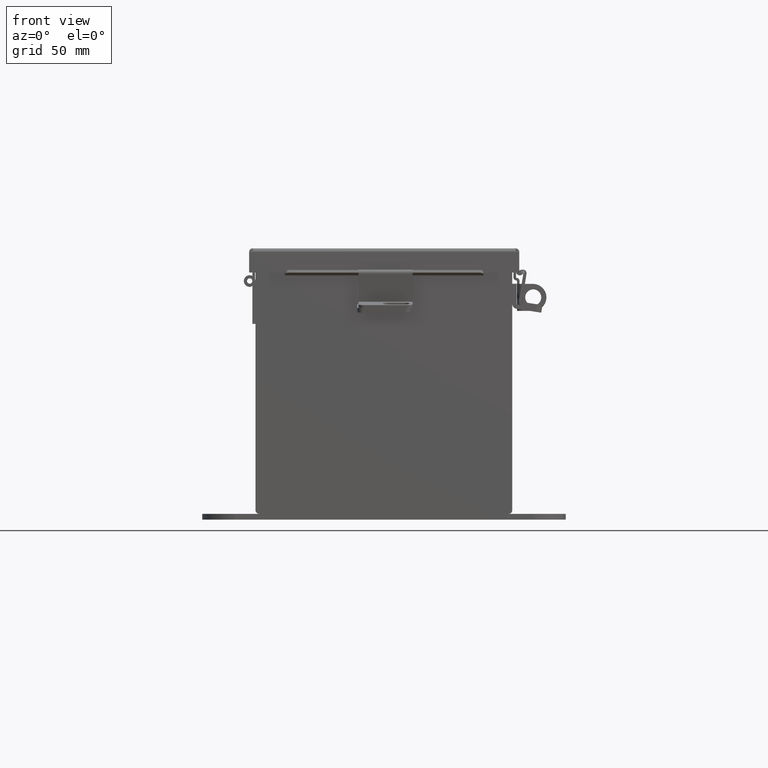
[diagram: clean part render]
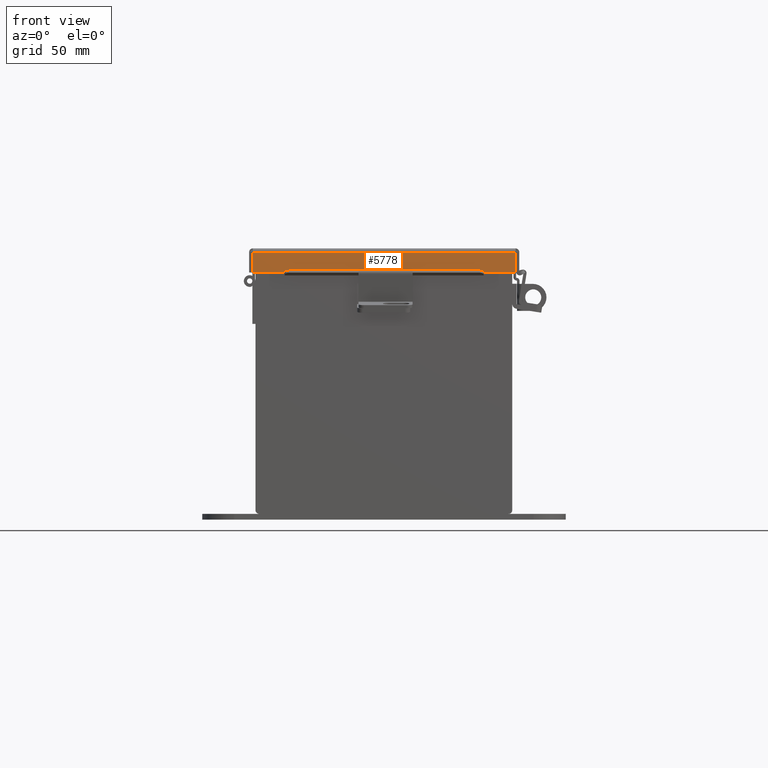
[diagram: same view with one face highlighted and labeled with its STEP entity id]
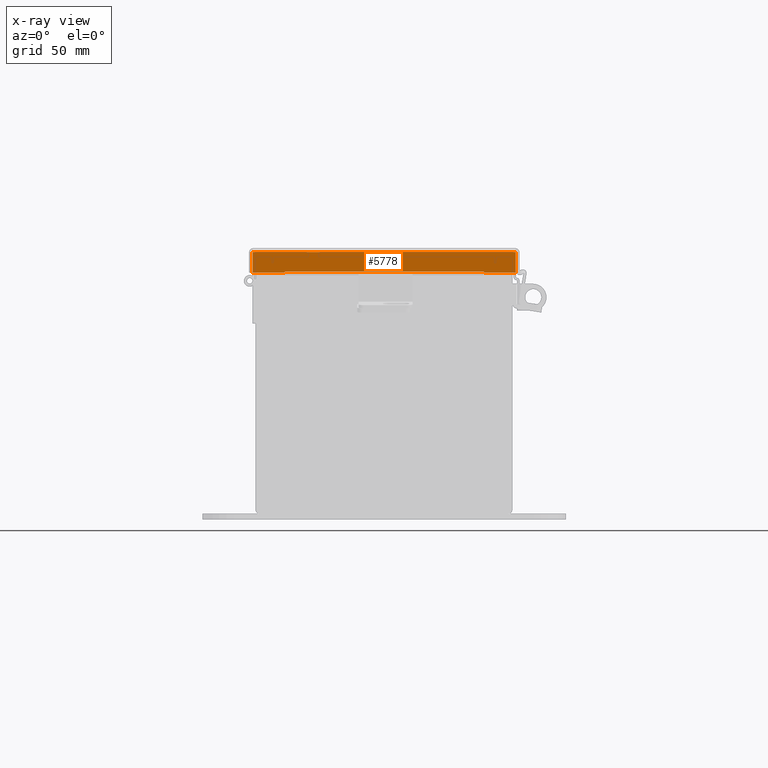
[diagram: x-ray of the same camera — body ghosted, the highlighted face saturated]
A machine part, front view. The second image highlights one B-rep face of the part: STEP entity #5778.
The next image is the same camera in x-ray: the body ghosted, the highlighted face saturated — about 0% of this face is hidden behind the body in this view.
In plain terms, the highlighted planar face has unit normal (0, 1, -0).
Its self-contained STEP definition (entity closure, byte-faithful):
#228 = LINE ( 'NONE', #12067, #5284 ) ;
#466 = ORIENTED_EDGE ( 'NONE', *, *, #4827, .F. ) ;
#999 = ORIENTED_EDGE ( 'NONE', *, *, #6266, .F. ) ;
#1695 = CARTESIAN_POINT ( 'NONE',  ( -3.156250000000012900, -6.156250000000000000, 0.01299999999999901400 ) ) ;
#1780 = ORIENTED_EDGE ( 'NONE', *, *, #6523, .T. ) ;
#1957 = EDGE_CURVE ( 'NONE', #8749, #13844, #4765, .T. ) ;
#2086 = DIRECTION ( 'NONE',  ( -1.000000000000000000, 1.049088990400490900E-030, 1.081919997490687600E-017 ) ) ;
#2248 = CARTESIAN_POINT ( 'NONE',  ( 1.493979371535143800E-017, -6.156250000000002700, 0.4873000000000000100 ) ) ;
#2363 = CARTESIAN_POINT ( 'NONE',  ( 2.324478932188148500, -6.156250000000002700, 0.4873000000000087800 ) ) ;
#2642 = EDGE_CURVE ( 'NONE', #4880, #8749, #7259, .T. ) ;
#2805 = LINE ( 'NONE', #2248, #8566 ) ;
#3052 = CARTESIAN_POINT ( 'NONE',  ( -2.324478932188144100, -6.156250000000003600, 0.4872999999999989000 ) ) ;
#3394 = DIRECTION ( 'NONE',  ( -1.000000000000000000, 1.049088990400490900E-030, 1.081919997490687600E-017 ) ) ;
#3443 = CARTESIAN_POINT ( 'NONE',  ( -3.074478932188150700, -6.156250000000002700, 0.4873000000000000100 ) ) ;
#3484 = DIRECTION ( 'NONE',  ( -8.439282183336881800E-031, 1.000000000000000000, 4.484872552701397500E-015 ) ) ;
#3555 = EDGE_LOOP ( 'NONE', ( #13665, #1780, #466, #999, #8827, #11867, #13426, #5837 ) ) ;
#4019 = VECTOR ( 'NONE', #8584, 39.37007874015748100 ) ;
#4052 = VECTOR ( 'NONE', #14363, 39.37007874015748100 ) ;
#4187 = LINE ( 'NONE', #12520, #6870 ) ;
#4201 = VECTOR ( 'NONE', #12746, 39.37007874015748100 ) ;
#4377 = FACE_OUTER_BOUND ( 'NONE', #3555, .T. ) ;
#4765 = LINE ( 'NONE', #5155, #4052 ) ;
#4827 = EDGE_CURVE ( 'NONE', #12940, #5956, #11262, .T. ) ;
#4880 = VERTEX_POINT ( 'NONE', #9718 ) ;
#5042 = DIRECTION ( 'NONE',  ( -7.888609052210086500E-031, -4.484872552701397500E-015, 1.000000000000000000 ) ) ;
#5155 = CARTESIAN_POINT ( 'NONE',  ( 2.324478932188146700, -6.156250000000005300, 0.4717115427318887600 ) ) ;
#5284 = VECTOR ( 'NONE', #13228, 39.37007874015748100 ) ;
#5288 = CARTESIAN_POINT ( 'NONE',  ( 3.074478932188142300, -6.156250000000000000, 0.01300000000000010700 ) ) ;
#5734 = VERTEX_POINT ( 'NONE', #11456 ) ;
#5778 = ADVANCED_FACE ( 'NONE', ( #4377 ), #6915, .F. ) ;
#5837 = ORIENTED_EDGE ( 'NONE', *, *, #2642, .F. ) ;
#5956 = VERTEX_POINT ( 'NONE', #3443 ) ;
#6266 = EDGE_CURVE ( 'NONE', #14654, #12940, #7793, .T. ) ;
#6523 = EDGE_CURVE ( 'NONE', #5734, #5956, #4187, .T. ) ;
#6738 = CARTESIAN_POINT ( 'NONE',  ( 3.074478932188141800, -6.156250000000002700, 0.4873000000000000100 ) ) ;
#6870 = VECTOR ( 'NONE', #2086, 39.37007874015748100 ) ;
#6915 = PLANE ( 'NONE',  #13305 ) ;
#7101 = CARTESIAN_POINT ( 'NONE',  ( 2.324478932188146700, -6.156250000000002700, 0.4717115427318887600 ) ) ;
#7259 = LINE ( 'NONE', #11571, #4201 ) ;
#7573 = CARTESIAN_POINT ( 'NONE',  ( -3.074478932188150700, -6.156250000000000000, 0.01300000000000010700 ) ) ;
#7590 = DIRECTION ( 'NONE',  ( 5.257443915090820100E-014, -1.401985044024211400E-013, -1.000000000000000000 ) ) ;
#7731 = EDGE_CURVE ( 'NONE', #14654, #8634, #228, .T. ) ;
#7793 = LINE ( 'NONE', #1695, #4019 ) ;
#7815 = VECTOR ( 'NONE', #7590, 39.37007874015748100 ) ;
#8080 = CARTESIAN_POINT ( 'NONE',  ( 0.0000000000000000000, -6.156250000000000000, -2.841121913410833900E-014 ) ) ;
#8566 = VECTOR ( 'NONE', #3394, 39.37007874015748100 ) ;
#8584 = DIRECTION ( 'NONE',  ( -1.000000000000000000, 1.099800117302675100E-030, -7.888609052210086500E-031 ) ) ;
#8634 = VERTEX_POINT ( 'NONE', #6738 ) ;
#8749 = VERTEX_POINT ( 'NONE', #7101 ) ;
#8827 = ORIENTED_EDGE ( 'NONE', *, *, #7731, .T. ) ;
#9718 = CARTESIAN_POINT ( 'NONE',  ( -2.324478932188145400, -6.156250000000002700, 0.4717115427318789300 ) ) ;
#9957 = EDGE_CURVE ( 'NONE', #8634, #13844, #2805, .T. ) ;
#10964 = EDGE_CURVE ( 'NONE', #5734, #4880, #13954, .T. ) ;
#11262 = LINE ( 'NONE', #11942, #14676 ) ;
#11456 = CARTESIAN_POINT ( 'NONE',  ( -2.324478932188144100, -6.156250000000002700, 0.4873000000000000100 ) ) ;
#11558 = DIRECTION ( 'NONE',  ( -7.888609052210086500E-031, -4.484872552701397500E-015, 1.000000000000000000 ) ) ;
#11571 = CARTESIAN_POINT ( 'NONE',  ( -2.324478932188146700, -6.156250000000005300, 0.4717115427318789300 ) ) ;
#11867 = ORIENTED_EDGE ( 'NONE', *, *, #9957, .T. ) ;
#11942 = CARTESIAN_POINT ( 'NONE',  ( -3.074478932188150700, -6.156250000000000000, 0.0000000000000000000 ) ) ;
#12067 = CARTESIAN_POINT ( 'NONE',  ( 3.074478932188141800, -6.156250000000000000, -2.731847993664263300E-014 ) ) ;
#12520 = CARTESIAN_POINT ( 'NONE',  ( 1.493979371535143800E-017, -6.156250000000002700, 0.4873000000000000100 ) ) ;
#12746 = DIRECTION ( 'NONE',  ( 1.000000000000000000, -1.050496310726362000E-030, 7.888609052210086500E-031 ) ) ;
#12940 = VERTEX_POINT ( 'NONE', #7573 ) ;
#13228 = DIRECTION ( 'NONE',  ( -7.888609052210086500E-031, -4.484872552701397500E-015, 1.000000000000000000 ) ) ;
#13305 = AXIS2_PLACEMENT_3D ( 'NONE', #8080, #3484, #11558 ) ;
#13426 = ORIENTED_EDGE ( 'NONE', *, *, #1957, .F. ) ;
#13665 = ORIENTED_EDGE ( 'NONE', *, *, #10964, .F. ) ;
#13844 = VERTEX_POINT ( 'NONE', #2363 ) ;
#13954 = LINE ( 'NONE', #3052, #7815 ) ;
#14363 = DIRECTION ( 'NONE',  ( -7.888609052210086500E-031, 1.401985044024205300E-013, 1.000000000000000000 ) ) ;
#14654 = VERTEX_POINT ( 'NONE', #5288 ) ;
#14676 = VECTOR ( 'NONE', #5042, 39.37007874015748100 ) ;